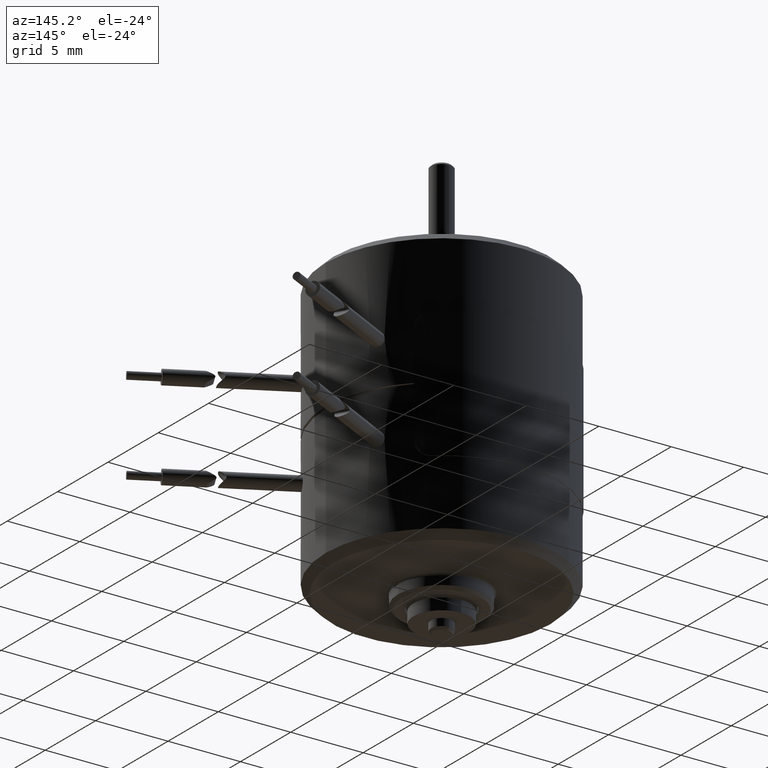
[diagram: clean part render]
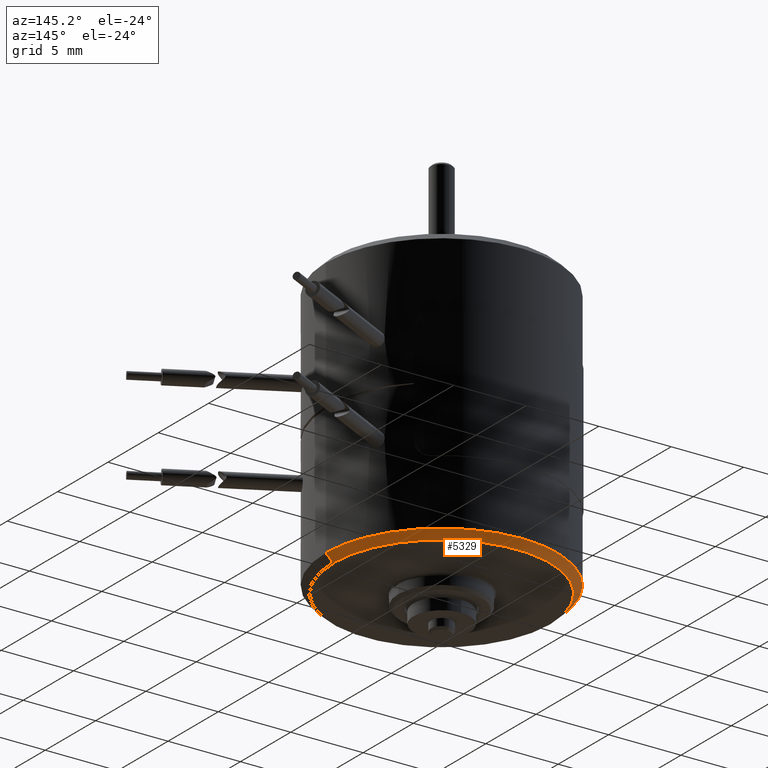
[diagram: same view with one face highlighted and labeled with its STEP entity id]
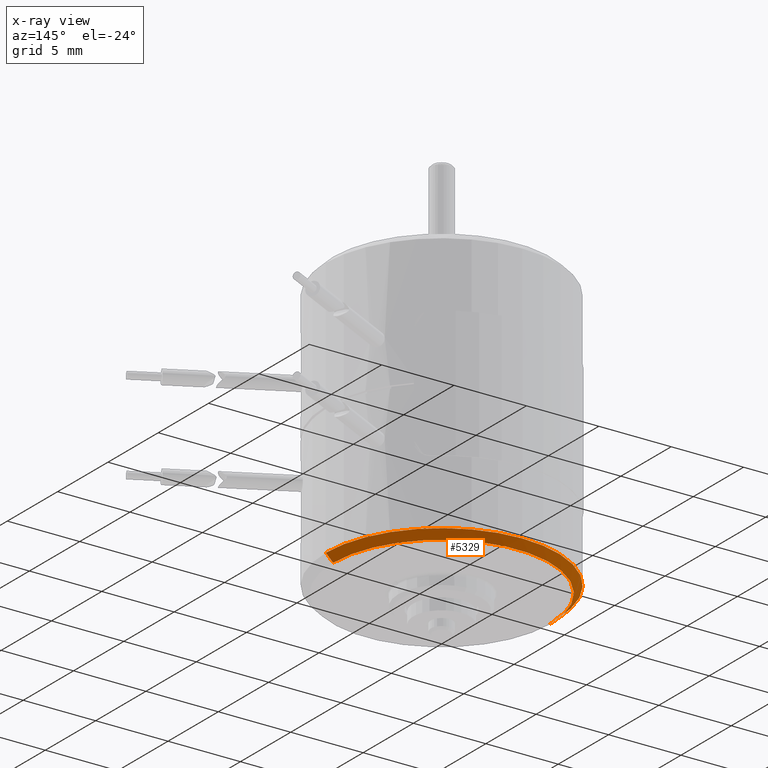
[diagram: x-ray of the same camera — body ghosted, the highlighted face saturated]
A machine part, auxiliary view. The second image highlights one B-rep face of the part: STEP entity #5329.
The next image is the same camera in x-ray: the body ghosted, the highlighted face saturated — about 0% of this face is hidden behind the body in this view.
In plain terms, the highlighted conical surface has half-angle 45 deg.
Its self-contained STEP definition (entity closure, byte-faithful):
#4958=DIRECTION('',(0.E0,-7.071067811865E-1,-7.071067811865E-1));
#4959=VECTOR('',#4958,7.071067811865E-1);
#4960=CARTESIAN_POINT('',(0.E0,-7.5E0,4.2E0));
#4961=LINE('',#4960,#4959);
#4967=DIRECTION('',(0.E0,7.071067811865E-1,-7.071067811865E-1));
#4968=VECTOR('',#4967,7.071067811865E-1);
#4969=CARTESIAN_POINT('',(0.E0,7.5E0,4.2E0));
#4970=LINE('',#4969,#4968);
#4971=CARTESIAN_POINT('',(0.E0,0.E0,3.7E0));
#4972=DIRECTION('',(0.E0,0.E0,-1.E0));
#4973=DIRECTION('',(0.E0,1.E0,0.E0));
#4974=AXIS2_PLACEMENT_3D('',#4971,#4972,#4973);
#4981=CARTESIAN_POINT('',(0.E0,0.E0,4.2E0));
#4982=DIRECTION('',(0.E0,0.E0,-1.E0));
#4983=DIRECTION('',(0.E0,1.E0,0.E0));
#4984=AXIS2_PLACEMENT_3D('',#4981,#4982,#4983);
#5198=CARTESIAN_POINT('',(0.E0,8.E0,3.7E0));
#5199=VERTEX_POINT('',#5198);
#5200=CARTESIAN_POINT('',(0.E0,-8.E0,3.7E0));
#5201=VERTEX_POINT('',#5200);
#5206=CARTESIAN_POINT('',(0.E0,7.5E0,4.2E0));
#5207=VERTEX_POINT('',#5206);
#5208=CARTESIAN_POINT('',(0.E0,-7.5E0,4.2E0));
#5209=VERTEX_POINT('',#5208);
#5317=CARTESIAN_POINT('',(0.E0,0.E0,3.95E0));
#5318=DIRECTION('',(0.E0,0.E0,-1.E0));
#5319=DIRECTION('',(0.E0,-1.E0,0.E0));
#5320=AXIS2_PLACEMENT_3D('',#5317,#5318,#5319);
#5321=CONICAL_SURFACE('',#5320,7.75E0,4.5E1);
#5322=ORIENTED_EDGE('',*,*,#5307,.T.);
#5323=ORIENTED_EDGE('',*,*,#5272,.T.);
#5324=ORIENTED_EDGE('',*,*,#5311,.F.);
#5326=ORIENTED_EDGE('',*,*,#5325,.F.);
#5327=EDGE_LOOP('',(#5322,#5323,#5324,#5326));
#5328=FACE_OUTER_BOUND('',#5327,.F.);
#5329=ADVANCED_FACE('',(#5328),#5321,.T.);
#4975=CIRCLE('',#4974,8.E0);
#4985=CIRCLE('',#4984,7.5E0);
#5272=EDGE_CURVE('',#5199,#5201,#4975,.T.);
#5307=EDGE_CURVE('',#5207,#5199,#4970,.T.);
#5311=EDGE_CURVE('',#5209,#5201,#4961,.T.);
#5325=EDGE_CURVE('',#5207,#5209,#4985,.T.);